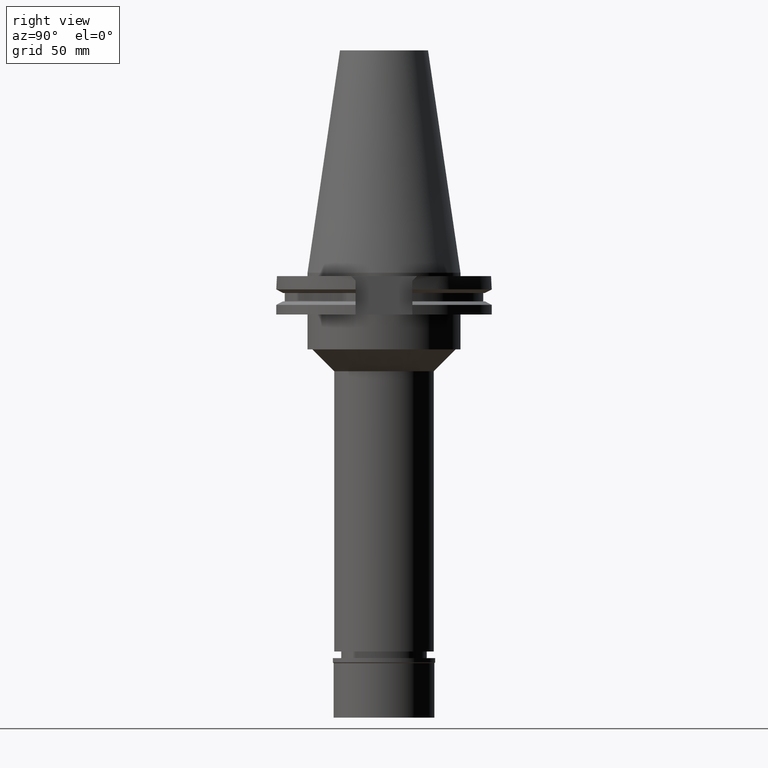
[diagram: clean part render]
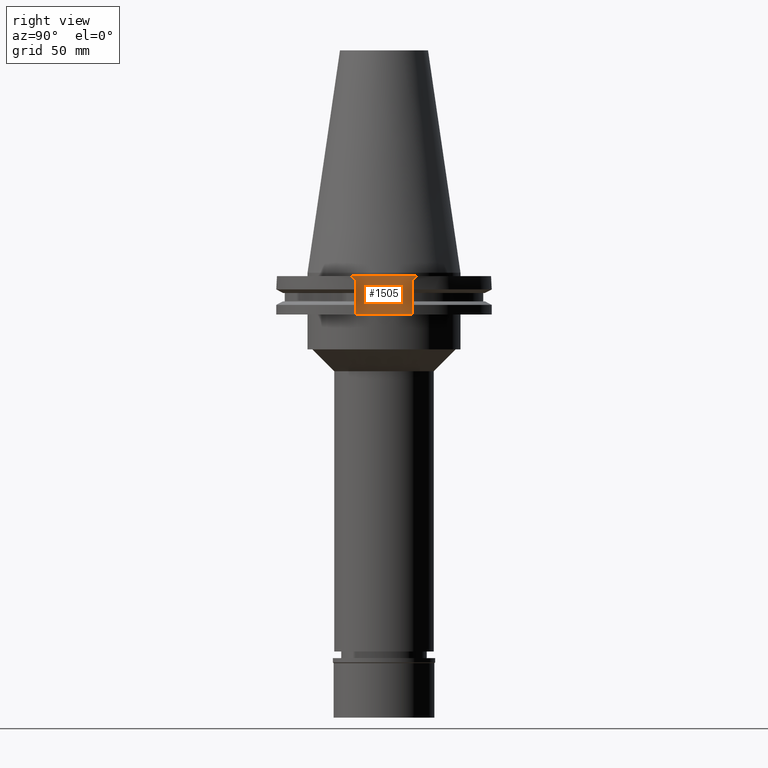
[diagram: same view with one face highlighted and labeled with its STEP entity id]
A machine part, right view. The second image highlights one B-rep face of the part: STEP entity #1505.
In plain terms, the highlighted planar face has unit normal (1, 0, 0).
Its self-contained STEP definition (entity closure, byte-faithful):
#59 = DIRECTION ( 'NONE',  ( 0.0000000000000000000, -1.000000000000000000, 0.0000000000000000000 ) ) ;
#65 = VERTEX_POINT ( 'NONE', #1557 ) ;
#199 = AXIS2_PLACEMENT_3D ( 'NONE', #2487, #2687, #3203 ) ;
#335 = CARTESIAN_POINT ( 'NONE',  ( 35.27000000000000313, 12.95500000000000007, -19.05000000000000071 ) ) ;
#351 = CARTESIAN_POINT ( 'NONE',  ( 35.27000000000000313, 15.15499999999999936, -1.500000000000000000 ) ) ;
#416 = CARTESIAN_POINT ( 'NONE',  ( 35.27000000000000313, -12.95500000000000007, -19.05000000000000071 ) ) ;
#445 = ORIENTED_EDGE ( 'NONE', *, *, #2496, .F. ) ;
#533 = DIRECTION ( 'NONE',  ( 0.0000000000000000000, -0.7071067811865474617, -0.7071067811865474617 ) ) ;
#563 = EDGE_CURVE ( 'NONE', #1418, #65, #1049, .T. ) ;
#594 = VERTEX_POINT ( 'NONE', #1063 ) ;
#622 = EDGE_CURVE ( 'NONE', #594, #2172, #2073, .T. ) ;
#709 = CARTESIAN_POINT ( 'NONE',  ( 35.27000000000000313, 12.95500000000000007, -3.700000000000000178 ) ) ;
#779 = ORIENTED_EDGE ( 'NONE', *, *, #2962, .F. ) ;
#1029 = DIRECTION ( 'NONE',  ( 0.0000000000000000000, 0.0000000000000000000, 1.000000000000000000 ) ) ;
#1046 = EDGE_CURVE ( 'NONE', #1182, #1418, #2308, .T. ) ;
#1049 = LINE ( 'NONE', #1104, #3031 ) ;
#1063 = CARTESIAN_POINT ( 'NONE',  ( 35.27000000000000313, 15.15499999999999936, -1.500000000000000000 ) ) ;
#1104 = CARTESIAN_POINT ( 'NONE',  ( 35.27000000000000313, -12.95500000000000007, -3.700000000000000178 ) ) ;
#1178 = LINE ( 'NONE', #709, #1325 ) ;
#1182 = VERTEX_POINT ( 'NONE', #416 ) ;
#1243 = EDGE_CURVE ( 'NONE', #594, #65, #2648, .T. ) ;
#1271 = VECTOR ( 'NONE', #533, 1000.000000000000114 ) ;
#1325 = VECTOR ( 'NONE', #2193, 1000.000000000000000 ) ;
#1335 = VERTEX_POINT ( 'NONE', #335 ) ;
#1395 = PLANE ( 'NONE',  #199 ) ;
#1412 = FACE_OUTER_BOUND ( 'NONE', #2830, .T. ) ;
#1418 = VERTEX_POINT ( 'NONE', #2396 ) ;
#1505 = ADVANCED_FACE ( 'NONE', ( #1412 ), #1395, .T. ) ;
#1553 = DIRECTION ( 'NONE',  ( 0.0000000000000000000, -0.7071067811865474617, 0.7071067811865474617 ) ) ;
#1557 = CARTESIAN_POINT ( 'NONE',  ( 35.27000000000000313, -15.15499999999999936, -1.500000000000000000 ) ) ;
#1574 = CARTESIAN_POINT ( 'NONE',  ( 35.27000000000000313, 12.95500000000000007, -19.05000000000000071 ) ) ;
#1751 = VECTOR ( 'NONE', #1029, 1000.000000000000000 ) ;
#1780 = ORIENTED_EDGE ( 'NONE', *, *, #1046, .F. ) ;
#2073 = LINE ( 'NONE', #2613, #1271 ) ;
#2076 = VECTOR ( 'NONE', #2156, 1000.000000000000000 ) ;
#2091 = LINE ( 'NONE', #1574, #2146 ) ;
#2146 = VECTOR ( 'NONE', #59, 1000.000000000000000 ) ;
#2156 = DIRECTION ( 'NONE',  ( 0.0000000000000000000, -1.000000000000000000, 0.0000000000000000000 ) ) ;
#2172 = VERTEX_POINT ( 'NONE', #2773 ) ;
#2193 = DIRECTION ( 'NONE',  ( 0.0000000000000000000, 0.0000000000000000000, -1.000000000000000000 ) ) ;
#2196 = ORIENTED_EDGE ( 'NONE', *, *, #1243, .T. ) ;
#2308 = LINE ( 'NONE', #2562, #1751 ) ;
#2354 = ORIENTED_EDGE ( 'NONE', *, *, #563, .F. ) ;
#2396 = CARTESIAN_POINT ( 'NONE',  ( 35.27000000000000313, -12.95500000000000007, -3.700000000000000178 ) ) ;
#2487 = CARTESIAN_POINT ( 'NONE',  ( 35.27000000000000313, 0.0000000000000000000, 0.0000000000000000000 ) ) ;
#2496 = EDGE_CURVE ( 'NONE', #2172, #1335, #1178, .T. ) ;
#2562 = CARTESIAN_POINT ( 'NONE',  ( 35.27000000000000313, -12.95500000000000007, -19.05000000000000071 ) ) ;
#2613 = CARTESIAN_POINT ( 'NONE',  ( 35.27000000000000313, 15.15499999999999936, -1.500000000000000000 ) ) ;
#2648 = LINE ( 'NONE', #351, #2076 ) ;
#2687 = DIRECTION ( 'NONE',  ( 1.000000000000000000, 0.0000000000000000000, 0.0000000000000000000 ) ) ;
#2773 = CARTESIAN_POINT ( 'NONE',  ( 35.27000000000000313, 12.95500000000000007, -3.700000000000000178 ) ) ;
#2830 = EDGE_LOOP ( 'NONE', ( #445, #3047, #2196, #2354, #1780, #779 ) ) ;
#2962 = EDGE_CURVE ( 'NONE', #1335, #1182, #2091, .T. ) ;
#3031 = VECTOR ( 'NONE', #1553, 1000.000000000000114 ) ;
#3047 = ORIENTED_EDGE ( 'NONE', *, *, #622, .F. ) ;
#3203 = DIRECTION ( 'NONE',  ( 0.0000000000000000000, 1.000000000000000000, 0.0000000000000000000 ) ) ;